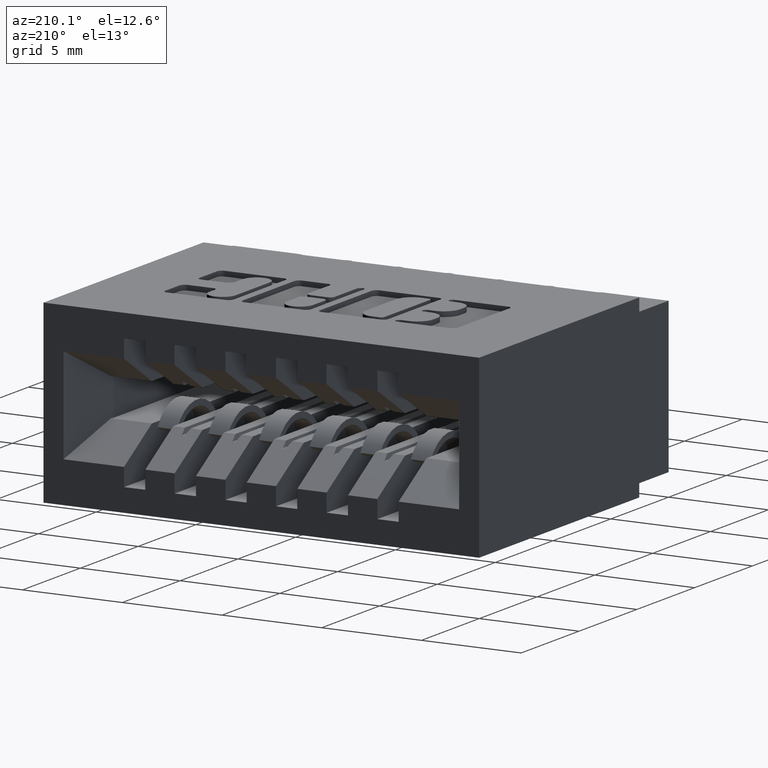
[diagram: clean part render]
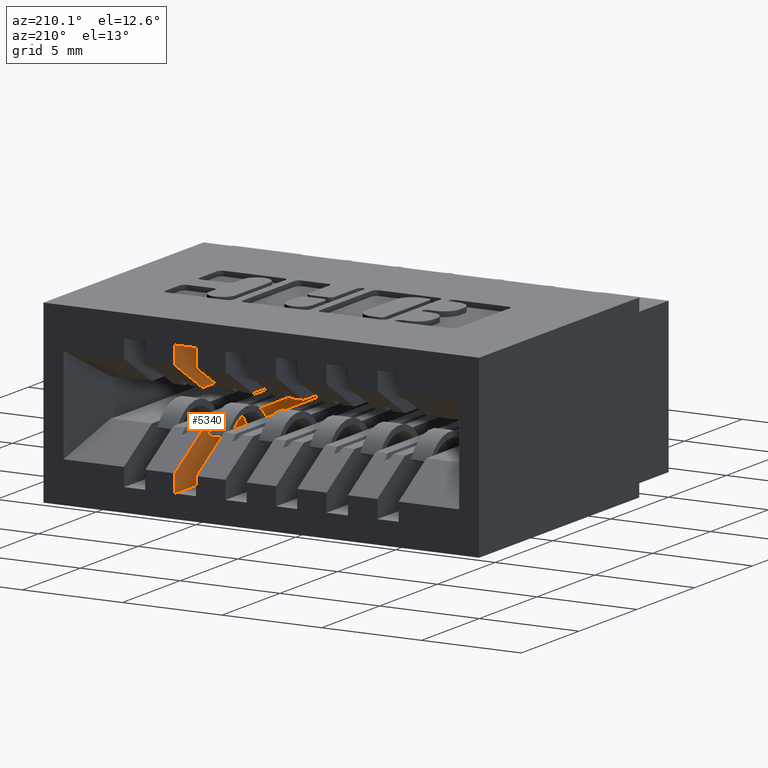
[diagram: same view with one face highlighted and labeled with its STEP entity id]
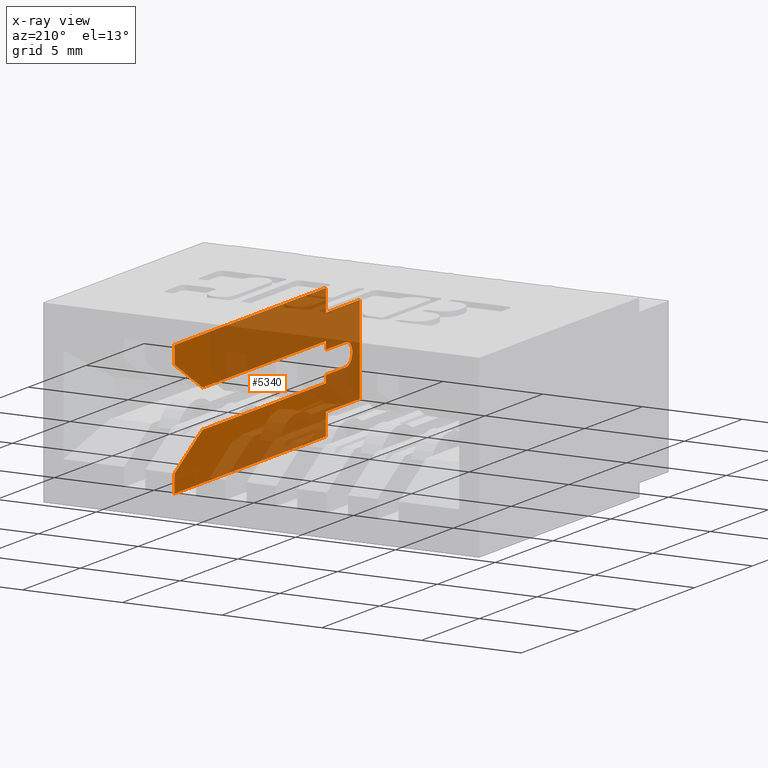
[diagram: x-ray of the same camera — body ghosted, the highlighted face saturated]
A machine part, auxiliary view. The second image highlights one B-rep face of the part: STEP entity #5340.
The next image is the same camera in x-ray: the body ghosted, the highlighted face saturated — about 72% of this face is hidden behind the body in this view.
In plain terms, the highlighted planar face has unit normal (1, -0, -0).
Its self-contained STEP definition (entity closure, byte-faithful):
#13 = CARTESIAN_POINT ( 'NONE',  ( 0.6009999999990421893, 0.06199999999999999956, -0.1969999999999994533 ) ) ;
#45 = CARTESIAN_POINT ( 'NONE',  ( 0.6009999999999996456, 0.1299999999999999212, -0.1380000000000003724 ) ) ;
#72 = LINE ( 'NONE', #11496, #12204 ) ;
#91 = VERTEX_POINT ( 'NONE', #4112 ) ;
#176 = VERTEX_POINT ( 'NONE', #8763 ) ;
#217 = VECTOR ( 'NONE', #7980, 39.37007874015748143 ) ;
#311 = ORIENTED_EDGE ( 'NONE', *, *, #2529, .T. ) ;
#374 = EDGE_CURVE ( 'NONE', #3437, #2423, #4929, .T. ) ;
#492 = VECTOR ( 'NONE', #9602, 39.37007874015748143 ) ;
#1003 = EDGE_CURVE ( 'NONE', #7793, #3124, #9837, .T. ) ;
#1153 = EDGE_CURVE ( 'NONE', #5341, #13106, #1893, .T. ) ;
#1224 = VERTEX_POINT ( 'NONE', #7051 ) ;
#1265 = AXIS2_PLACEMENT_3D ( 'NONE', #12255, #8802, #7895 ) ;
#1364 = VERTEX_POINT ( 'NONE', #1721 ) ;
#1441 = LINE ( 'NONE', #13122, #492 ) ;
#1464 = ORIENTED_EDGE ( 'NONE', *, *, #11879, .F. ) ;
#1558 = CARTESIAN_POINT ( 'NONE',  ( 0.6009999999999996456, 0.1300000000000000044, -0.2874999999999999223 ) ) ;
#1608 = CIRCLE ( 'NONE', #7354, 0.02199999999999996403 ) ;
#1610 = DIRECTION ( 'NONE',  ( 2.444074818391193237E-16, 0.0000000000000000000, 1.000000000000000000 ) ) ;
#1721 = CARTESIAN_POINT ( 'NONE',  ( 0.6009999999999996456, 0.6449999999999999067, -0.2697499999999999898 ) ) ;
#1760 = CARTESIAN_POINT ( 'NONE',  ( 0.6009999999999996456, -8.874685183736367429E-33, -0.3049999999999999933 ) ) ;
#1810 = CARTESIAN_POINT ( 'NONE',  ( 0.6009999999999996456, 0.1299999999999999212, -0.1380000000000002613 ) ) ;
#1893 = LINE ( 'NONE', #6464, #8030 ) ;
#1900 = VECTOR ( 'NONE', #7844, 39.37007874015748143 ) ;
#2059 = CARTESIAN_POINT ( 'NONE',  ( 0.6009999999999996456, 0.1299999999999999212, -0.1529999999999994975 ) ) ;
#2073 = EDGE_CURVE ( 'NONE', #9019, #10458, #7003, .T. ) ;
#2085 = VERTEX_POINT ( 'NONE', #9398 ) ;
#2088 = ORIENTED_EDGE ( 'NONE', *, *, #1153, .F. ) ;
#2206 = CARTESIAN_POINT ( 'NONE',  ( 0.6009999999999996456, 0.1300000000000000044, -0.06250000000000016653 ) ) ;
#2352 = VERTEX_POINT ( 'NONE', #11267 ) ;
#2393 = DIRECTION ( 'NONE',  ( 4.930380657631323784E-32, 1.000000000000000000, -1.137588725299934145E-47 ) ) ;
#2423 = VERTEX_POINT ( 'NONE', #7056 ) ;
#2507 = VECTOR ( 'NONE', #12726, 39.37007874015748143 ) ;
#2513 = VECTOR ( 'NONE', #2936, 39.37007874015748143 ) ;
#2514 = LINE ( 'NONE', #2589, #217 ) ;
#2529 = EDGE_CURVE ( 'NONE', #176, #3124, #14405, .T. ) ;
#2589 = CARTESIAN_POINT ( 'NONE',  ( 0.6009999999999996456, 0.6449999999999999067, -4.883868523331754268E-17 ) ) ;
#2599 = CARTESIAN_POINT ( 'NONE',  ( 0.6009999999990421893, 0.06199999999999999956, -0.1529999999999994975 ) ) ;
#2891 = CARTESIAN_POINT ( 'NONE',  ( 0.6009999999990421893, 0.1299999999999999212, -0.1969999999999995088 ) ) ;
#2929 = VECTOR ( 'NONE', #14213, 39.37007874015748143 ) ;
#2936 = DIRECTION ( 'NONE',  ( 4.930380657631323784E-32, 1.000000000000000000, 0.0000000000000000000 ) ) ;
#2954 = CARTESIAN_POINT ( 'NONE',  ( 0.6009999999999996456, 0.1300000000000000044, -4.883868523331754268E-17 ) ) ;
#3032 = VECTOR ( 'NONE', #10782, 39.37007874015748143 ) ;
#3044 = EDGE_CURVE ( 'NONE', #2352, #12323, #11990, .T. ) ;
#3124 = VERTEX_POINT ( 'NONE', #4175 ) ;
#3399 = ORIENTED_EDGE ( 'NONE', *, *, #12478, .F. ) ;
#3437 = VERTEX_POINT ( 'NONE', #7175 ) ;
#3964 = ORIENTED_EDGE ( 'NONE', *, *, #6474, .F. ) ;
#4039 = VECTOR ( 'NONE', #8810, 39.37007874015748143 ) ;
#4107 = ORIENTED_EDGE ( 'NONE', *, *, #7654, .T. ) ;
#4112 = CARTESIAN_POINT ( 'NONE',  ( 0.6009999999999996456, 0.1299999999999999212, -0.2120000000000002716 ) ) ;
#4175 = CARTESIAN_POINT ( 'NONE',  ( 0.6009999999999996456, 0.5499999999999999334, -0.1379999999999999283 ) ) ;
#4262 = ORIENTED_EDGE ( 'NONE', *, *, #1003, .F. ) ;
#4371 = DIRECTION ( 'NONE',  ( 2.444074818391193237E-16, 0.0000000000000000000, 1.000000000000000000 ) ) ;
#4533 = LINE ( 'NONE', #14604, #5417 ) ;
#4685 = EDGE_CURVE ( 'NONE', #9019, #7793, #10336, .T. ) ;
#4905 = EDGE_CURVE ( 'NONE', #10458, #9177, #1608, .T. ) ;
#4929 = LINE ( 'NONE', #13859, #2507 ) ;
#4943 = CARTESIAN_POINT ( 'NONE',  ( 0.6009999999999996456, 0.1300000000000000044, -0.2874999999999999223 ) ) ;
#5224 = ORIENTED_EDGE ( 'NONE', *, *, #5244, .T. ) ;
#5244 = EDGE_CURVE ( 'NONE', #10187, #12323, #11970, .T. ) ;
#5340 = ADVANCED_FACE ( 'NONE', ( #7678 ), #9924, .F. ) ;
#5341 = VERTEX_POINT ( 'NONE', #5501 ) ;
#5364 = DIRECTION ( 'NONE',  ( 1.000000000000000000, -4.930380657631323784E-32, -2.444074818391193237E-16 ) ) ;
#5417 = VECTOR ( 'NONE', #11284, 39.37007874015748143 ) ;
#5501 = CARTESIAN_POINT ( 'NONE',  ( 0.6009999999999996456, 0.01499999999999998904, -0.08849999999999998146 ) ) ;
#5663 = LINE ( 'NONE', #10247, #1900 ) ;
#6418 = ORIENTED_EDGE ( 'NONE', *, *, #3044, .F. ) ;
#6446 = EDGE_CURVE ( 'NONE', #13106, #2352, #9700, .T. ) ;
#6464 = CARTESIAN_POINT ( 'NONE',  ( 0.6009999999999996456, 0.01499999999999995087, -4.883868523331753652E-17 ) ) ;
#6474 = EDGE_CURVE ( 'NONE', #3437, #11882, #6636, .T. ) ;
#6496 = ORIENTED_EDGE ( 'NONE', *, *, #10294, .F. ) ;
#6543 = CARTESIAN_POINT ( 'NONE',  ( 0.6009999999999996456, 0.6449999999999999067, -4.883868523331754268E-17 ) ) ;
#6636 = LINE ( 'NONE', #2206, #11311 ) ;
#6755 = VERTEX_POINT ( 'NONE', #7367 ) ;
#6815 = EDGE_LOOP ( 'NONE', ( #7960, #8536, #13589, #4107, #1464, #7087, #11351, #3399, #11460, #5224, #6418, #12006, #2088, #6496, #3964, #12068, #7633, #12837, #311, #4262 ) ) ;
#7003 = LINE ( 'NONE', #11736, #13564 ) ;
#7051 = CARTESIAN_POINT ( 'NONE',  ( 0.6009999999999996456, 0.6449999999999999067, -0.04499999999999989425 ) ) ;
#7056 = CARTESIAN_POINT ( 'NONE',  ( 0.6009999999999996456, 0.1300000000000000044, -0.04499999999999989425 ) ) ;
#7087 = ORIENTED_EDGE ( 'NONE', *, *, #7190, .F. ) ;
#7175 = CARTESIAN_POINT ( 'NONE',  ( 0.6009999999999996456, 0.1300000000000000044, -0.06250000000000016653 ) ) ;
#7190 = EDGE_CURVE ( 'NONE', #2085, #91, #1441, .T. ) ;
#7308 = CARTESIAN_POINT ( 'NONE',  ( 0.6009999999999996456, 0.1300000000000000600, -0.2615000000000000102 ) ) ;
#7354 = AXIS2_PLACEMENT_3D ( 'NONE', #14615, #5364, #8963 ) ;
#7367 = CARTESIAN_POINT ( 'NONE',  ( 0.6009999999999996456, 0.6449999999999999067, -0.3049999999999999933 ) ) ;
#7374 = VECTOR ( 'NONE', #12652, 39.37007874015748143 ) ;
#7610 = LINE ( 'NONE', #12041, #10754 ) ;
#7633 = ORIENTED_EDGE ( 'NONE', *, *, #13769, .T. ) ;
#7654 = EDGE_CURVE ( 'NONE', #9177, #10555, #4533, .T. ) ;
#7678 = FACE_OUTER_BOUND ( 'NONE', #6815, .T. ) ;
#7793 = VERTEX_POINT ( 'NONE', #10308 ) ;
#7844 = DIRECTION ( 'NONE',  ( 0.0000000000000000000, -1.000000000000000000, 8.908199979339986784E-16 ) ) ;
#7895 = DIRECTION ( 'NONE',  ( -2.444074818391193237E-16, 0.0000000000000000000, -1.000000000000000000 ) ) ;
#7960 = ORIENTED_EDGE ( 'NONE', *, *, #4685, .F. ) ;
#7976 = VECTOR ( 'NONE', #1610, 39.37007874015748143 ) ;
#7980 = DIRECTION ( 'NONE',  ( 2.444074818391193237E-16, 0.0000000000000000000, 1.000000000000000000 ) ) ;
#8015 = EDGE_CURVE ( 'NONE', #176, #1224, #9009, .T. ) ;
#8030 = VECTOR ( 'NONE', #11037, 39.37007874015748143 ) ;
#8078 = CARTESIAN_POINT ( 'NONE',  ( 0.6009999999999996456, -8.874685183736367429E-33, -0.04499999999999989425 ) ) ;
#8536 = ORIENTED_EDGE ( 'NONE', *, *, #2073, .T. ) ;
#8624 = DIRECTION ( 'NONE',  ( -1.269568538794947427E-16, -0.8545023705661021207, -0.5194474936862356618 ) ) ;
#8763 = CARTESIAN_POINT ( 'NONE',  ( 0.6009999999999998677, 0.6449999999999999067, -0.08024999999999998801 ) ) ;
#8802 = DIRECTION ( 'NONE',  ( 1.000000000000000000, -4.930380657631323784E-32, -2.444074818391193237E-16 ) ) ;
#8810 = DIRECTION ( 'NONE',  ( 4.930380657631323784E-32, 1.000000000000000000, -1.137588725299934145E-47 ) ) ;
#8831 = CARTESIAN_POINT ( 'NONE',  ( 0.6009999999999996456, 0.1300000000000000044, -0.3049999999999999933 ) ) ;
#8963 = DIRECTION ( 'NONE',  ( 0.0000000000000000000, 0.0000000000000000000, -1.000000000000000000 ) ) ;
#9009 = LINE ( 'NONE', #6543, #11673 ) ;
#9019 = VERTEX_POINT ( 'NONE', #2059 ) ;
#9165 = DIRECTION ( 'NONE',  ( -2.334078752064788094E-31, -1.000000000000000000, -7.532669100177204539E-16 ) ) ;
#9177 = VERTEX_POINT ( 'NONE', #13 ) ;
#9398 = CARTESIAN_POINT ( 'NONE',  ( 0.6009999999999996456, 0.5499999999999999334, -0.2120000000000002716 ) ) ;
#9597 = VECTOR ( 'NONE', #2393, 39.37007874015748143 ) ;
#9602 = DIRECTION ( 'NONE',  ( -4.930380657631323784E-32, -1.000000000000000000, 0.0000000000000000000 ) ) ;
#9700 = LINE ( 'NONE', #7308, #2929 ) ;
#9837 = LINE ( 'NONE', #1810, #2513 ) ;
#9924 = PLANE ( 'NONE',  #1265 ) ;
#9929 = DIRECTION ( 'NONE',  ( -1.313388458492438996E-15, 0.0000000000000000000, -1.000000000000000000 ) ) ;
#9936 = DIRECTION ( 'NONE',  ( 2.444074818391193237E-16, 0.0000000000000000000, 1.000000000000000000 ) ) ;
#10187 = VERTEX_POINT ( 'NONE', #8831 ) ;
#10247 = CARTESIAN_POINT ( 'NONE',  ( 0.6009999999999996456, 0.1300000000000000044, -0.08850000000000007860 ) ) ;
#10294 = EDGE_CURVE ( 'NONE', #11882, #5341, #5663, .T. ) ;
#10308 = CARTESIAN_POINT ( 'NONE',  ( 0.6009999999999996456, 0.1299999999999999212, -0.1380000000000002613 ) ) ;
#10336 = LINE ( 'NONE', #45, #7374 ) ;
#10458 = VERTEX_POINT ( 'NONE', #2599 ) ;
#10555 = VERTEX_POINT ( 'NONE', #2891 ) ;
#10586 = EDGE_CURVE ( 'NONE', #10187, #6755, #12037, .T. ) ;
#10682 = EDGE_CURVE ( 'NONE', #2085, #1364, #72, .T. ) ;
#10741 = CARTESIAN_POINT ( 'NONE',  ( 0.6009999999999996456, 0.01500000000000002720, -0.2615000000000001767 ) ) ;
#10754 = VECTOR ( 'NONE', #9936, 39.37007874015748143 ) ;
#10782 = DIRECTION ( 'NONE',  ( -0.0000000000000000000, -1.313388458492438996E-15, -1.000000000000000000 ) ) ;
#11037 = DIRECTION ( 'NONE',  ( -2.444074818391193237E-16, 3.129769166712808936E-31, -1.000000000000000000 ) ) ;
#11134 = CARTESIAN_POINT ( 'NONE',  ( 0.6009999999999996456, 0.1300000000000000044, -0.08850000000000007860 ) ) ;
#11208 = DIRECTION ( 'NONE',  ( -1.269568538794946194E-16, 0.8545023705661021207, -0.5194474936862355507 ) ) ;
#11267 = CARTESIAN_POINT ( 'NONE',  ( 0.6009999999999996456, 0.1300000000000000600, -0.2615000000000000102 ) ) ;
#11284 = DIRECTION ( 'NONE',  ( -7.343223917713044735E-32, 1.000000000000000000, -5.021779400118135702E-16 ) ) ;
#11311 = VECTOR ( 'NONE', #9929, 39.37007874015748143 ) ;
#11351 = ORIENTED_EDGE ( 'NONE', *, *, #10682, .T. ) ;
#11460 = ORIENTED_EDGE ( 'NONE', *, *, #10586, .F. ) ;
#11496 = CARTESIAN_POINT ( 'NONE',  ( 0.6009999999999996456, 0.5499999999999998224, -0.2119999999999999385 ) ) ;
#11673 = VECTOR ( 'NONE', #4371, 39.37007874015748143 ) ;
#11736 = CARTESIAN_POINT ( 'NONE',  ( 0.6009999999990421893, 0.1299999999999999212, -0.1529999999999994975 ) ) ;
#11879 = EDGE_CURVE ( 'NONE', #91, #10555, #7610, .T. ) ;
#11882 = VERTEX_POINT ( 'NONE', #11134 ) ;
#11970 = LINE ( 'NONE', #2954, #7976 ) ;
#11990 = LINE ( 'NONE', #1558, #3032 ) ;
#12006 = ORIENTED_EDGE ( 'NONE', *, *, #6446, .F. ) ;
#12037 = LINE ( 'NONE', #1760, #4039 ) ;
#12041 = CARTESIAN_POINT ( 'NONE',  ( 0.6009999999999996456, 0.1299999999999999212, -0.1380000000000003724 ) ) ;
#12068 = ORIENTED_EDGE ( 'NONE', *, *, #374, .T. ) ;
#12204 = VECTOR ( 'NONE', #11208, 39.37007874015748854 ) ;
#12255 = CARTESIAN_POINT ( 'NONE',  ( 0.6009999999999996456, -8.874685183736367429E-33, -4.883868523331754268E-17 ) ) ;
#12323 = VERTEX_POINT ( 'NONE', #4943 ) ;
#12478 = EDGE_CURVE ( 'NONE', #6755, #1364, #2514, .T. ) ;
#12505 = LINE ( 'NONE', #8078, #9597 ) ;
#12652 = DIRECTION ( 'NONE',  ( 2.444074818391193237E-16, 0.0000000000000000000, 1.000000000000000000 ) ) ;
#12726 = DIRECTION ( 'NONE',  ( 2.444074818391193237E-16, 0.0000000000000000000, 1.000000000000000000 ) ) ;
#12837 = ORIENTED_EDGE ( 'NONE', *, *, #8015, .F. ) ;
#12983 = CARTESIAN_POINT ( 'NONE',  ( 0.6009999999999996456, 0.6449999999999999067, -0.08024999999999994638 ) ) ;
#13106 = VERTEX_POINT ( 'NONE', #10741 ) ;
#13122 = CARTESIAN_POINT ( 'NONE',  ( 0.6009999999999996456, 0.1299999999999999212, -0.2120000000000002716 ) ) ;
#13564 = VECTOR ( 'NONE', #9165, 39.37007874015748143 ) ;
#13589 = ORIENTED_EDGE ( 'NONE', *, *, #4905, .T. ) ;
#13769 = EDGE_CURVE ( 'NONE', #2423, #1224, #12505, .T. ) ;
#13859 = CARTESIAN_POINT ( 'NONE',  ( 0.6009999999999996456, 0.1300000000000000044, -4.883868523331754268E-17 ) ) ;
#14045 = VECTOR ( 'NONE', #8624, 39.37007874015748143 ) ;
#14213 = DIRECTION ( 'NONE',  ( -0.0000000000000000000, 1.000000000000000000, 1.484699996556664595E-15 ) ) ;
#14405 = LINE ( 'NONE', #12983, #14045 ) ;
#14604 = CARTESIAN_POINT ( 'NONE',  ( 0.6009999999990421893, 0.1299999999999999212, -0.1969999999999995088 ) ) ;
#14615 = CARTESIAN_POINT ( 'NONE',  ( 0.6009999999990421893, 0.06200000000000000649, -0.1749999999999994615 ) ) ;